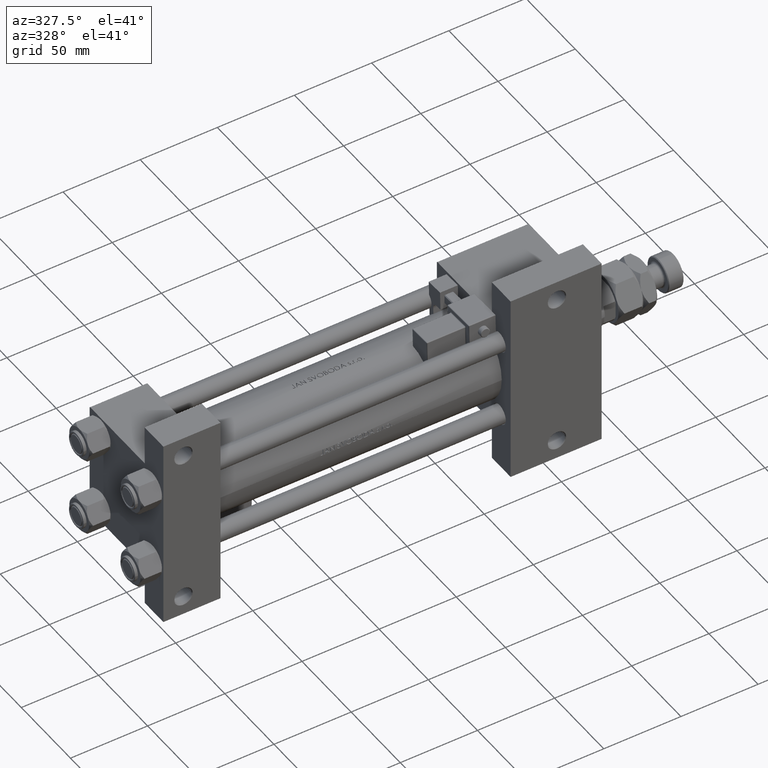
[diagram: clean part render]
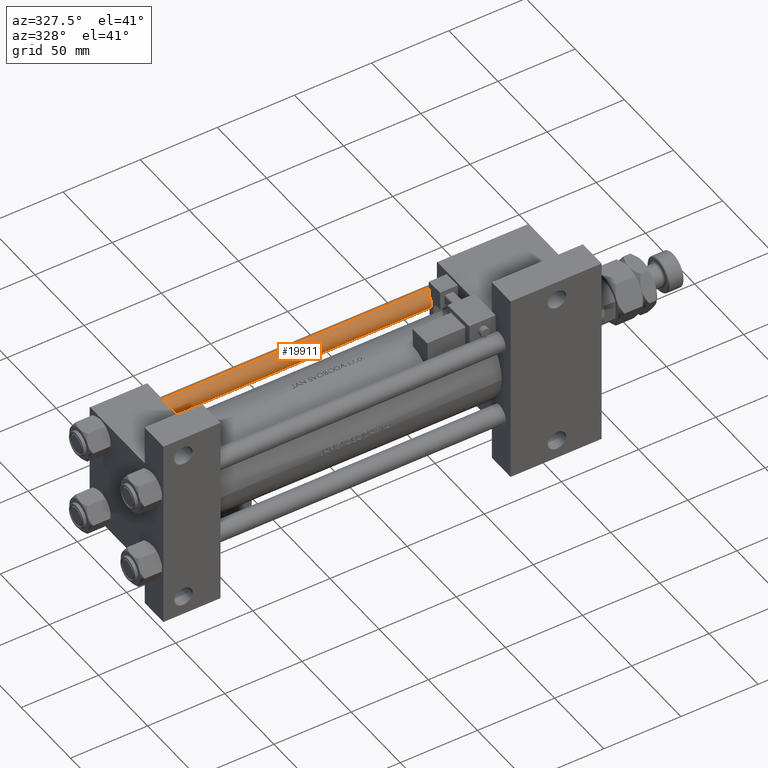
[diagram: same view with one face highlighted and labeled with its STEP entity id]
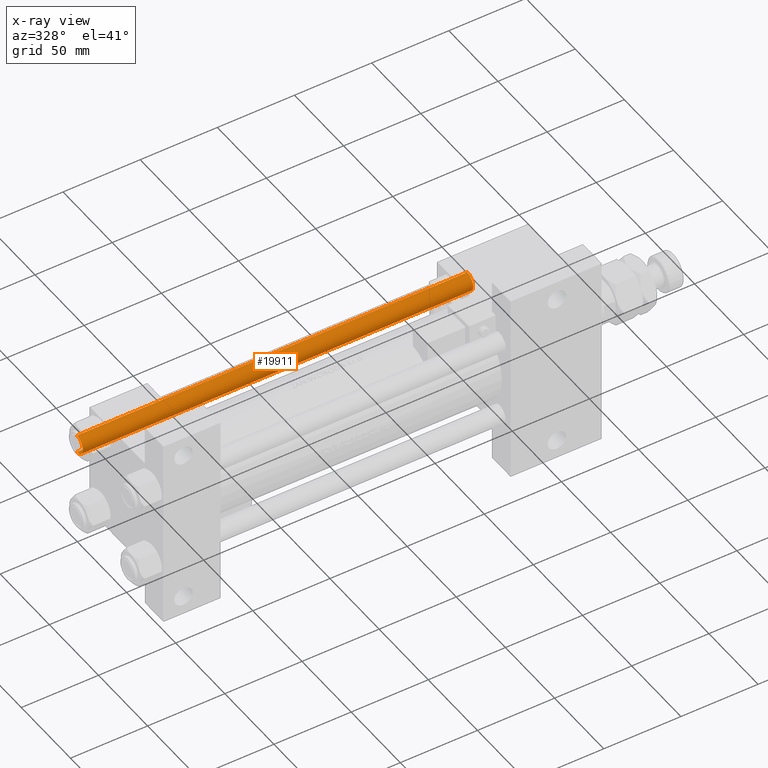
[diagram: x-ray of the same camera — body ghosted, the highlighted face saturated]
A machine part, auxiliary view. The second image highlights one B-rep face of the part: STEP entity #19911.
The next image is the same camera in x-ray: the body ghosted, the highlighted face saturated — about 0% of this face is hidden behind the body in this view.
In plain terms, the highlighted cylindrical surface (edge-blend (fillet) strip) has radius 6 mm, axis along (-1, -0, -0).
Its self-contained STEP definition (entity closure, byte-faithful):
#530 = CARTESIAN_POINT ( 'NONE',  ( 6.000000000000000888, 7.347880794884120722E-16, 254.0000000000000000 ) ) ;
#2587 = CIRCLE ( 'NONE', #15371, 6.000000000000000888 ) ;
#3300 = DIRECTION ( 'NONE',  ( -0.000000000000000000, -0.000000000000000000, -1.000000000000000000 ) ) ;
#7340 = FACE_OUTER_BOUND ( 'NONE', #10982, .T. ) ;
#9806 = VERTEX_POINT ( 'NONE', #20826 ) ;
#10982 = EDGE_LOOP ( 'NONE', ( #18109, #26572, #20399, #18269 ) ) ;
#11336 = LINE ( 'NONE', #530, #35927 ) ;
#11402 = CARTESIAN_POINT ( 'NONE',  ( 0.000000000000000000, 0.000000000000000000, 253.5000000000000568 ) ) ;
#12149 = DIRECTION ( 'NONE',  ( -1.000000000000000000, 0.000000000000000000, 0.000000000000000000 ) ) ;
#15289 = CARTESIAN_POINT ( 'NONE',  ( -6.000000000000000888, 0.000000000000000000, 253.5000000000000568 ) ) ;
#15371 = AXIS2_PLACEMENT_3D ( 'NONE', #11402, #31702, #31177 ) ;
#15896 = CYLINDRICAL_SURFACE ( 'NONE', #37060, 6.000000000000000888 ) ;
#15905 = VERTEX_POINT ( 'NONE', #48967 ) ;
#16319 = DIRECTION ( 'NONE',  ( 1.000000000000000000, 0.000000000000000000, 0.000000000000000000 ) ) ;
#18109 = ORIENTED_EDGE ( 'NONE', *, *, #41134, .F. ) ;
#18269 = ORIENTED_EDGE ( 'NONE', *, *, #48807, .T. ) ;
#19911 = ADVANCED_FACE ( 'NONE', ( #7340 ), #15896, .T. ) ;
#20399 = ORIENTED_EDGE ( 'NONE', *, *, #47973, .T. ) ;
#20826 = CARTESIAN_POINT ( 'NONE',  ( -6.000000000000000888, 0.000000000000000000, 0.5000000000000004441 ) ) ;
#23113 = CIRCLE ( 'NONE', #35920, 6.000000000000000888 ) ;
#23481 = CARTESIAN_POINT ( 'NONE',  ( 6.000000000000000888, 7.347880794884120722E-16, 0.5000000000000004441 ) ) ;
#25670 = VERTEX_POINT ( 'NONE', #15289 ) ;
#26572 = ORIENTED_EDGE ( 'NONE', *, *, #47902, .T. ) ;
#31177 = DIRECTION ( 'NONE',  ( 1.000000000000000000, 0.000000000000000000, 0.000000000000000000 ) ) ;
#31394 = CARTESIAN_POINT ( 'NONE',  ( 0.000000000000000000, 0.000000000000000000, 254.0000000000000000 ) ) ;
#31586 = VECTOR ( 'NONE', #44823, 1000.000000000000000 ) ;
#31702 = DIRECTION ( 'NONE',  ( 0.000000000000000000, 0.000000000000000000, -1.000000000000000000 ) ) ;
#31920 = VERTEX_POINT ( 'NONE', #23481 ) ;
#32452 = DIRECTION ( 'NONE',  ( -0.000000000000000000, -0.000000000000000000, -1.000000000000000000 ) ) ;
#35920 = AXIS2_PLACEMENT_3D ( 'NONE', #36397, #52732, #16319 ) ;
#35927 = VECTOR ( 'NONE', #3300, 1000.000000000000000 ) ;
#36397 = CARTESIAN_POINT ( 'NONE',  ( 0.000000000000000000, 0.000000000000000000, 0.5000000000000004441 ) ) ;
#36511 = LINE ( 'NONE', #44561, #31586 ) ;
#37060 = AXIS2_PLACEMENT_3D ( 'NONE', #31394, #32452, #12149 ) ;
#41134 = EDGE_CURVE ( 'NONE', #15905, #31920, #11336, .T. ) ;
#44561 = CARTESIAN_POINT ( 'NONE',  ( -6.000000000000000888, 0.000000000000000000, 254.0000000000000000 ) ) ;
#44823 = DIRECTION ( 'NONE',  ( -0.000000000000000000, -0.000000000000000000, -1.000000000000000000 ) ) ;
#47902 = EDGE_CURVE ( 'NONE', #15905, #25670, #2587, .T. ) ;
#47973 = EDGE_CURVE ( 'NONE', #25670, #9806, #36511, .T. ) ;
#48807 = EDGE_CURVE ( 'NONE', #9806, #31920, #23113, .T. ) ;
#48967 = CARTESIAN_POINT ( 'NONE',  ( 6.000000000000000888, 7.347880794884120722E-16, 253.5000000000000568 ) ) ;
#52732 = DIRECTION ( 'NONE',  ( -0.000000000000000000, -0.000000000000000000, 1.000000000000000000 ) ) ;